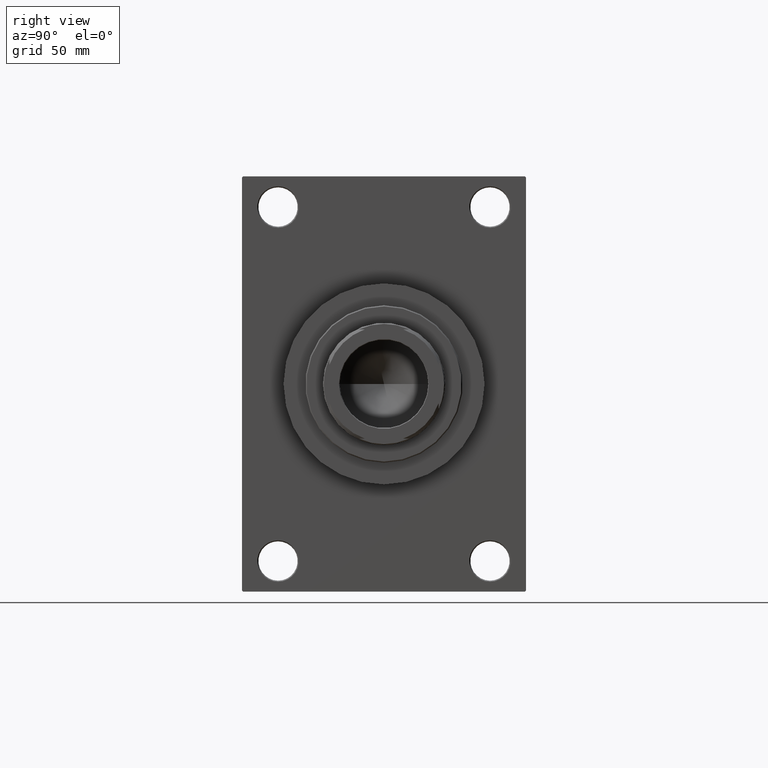
[diagram: clean part render]
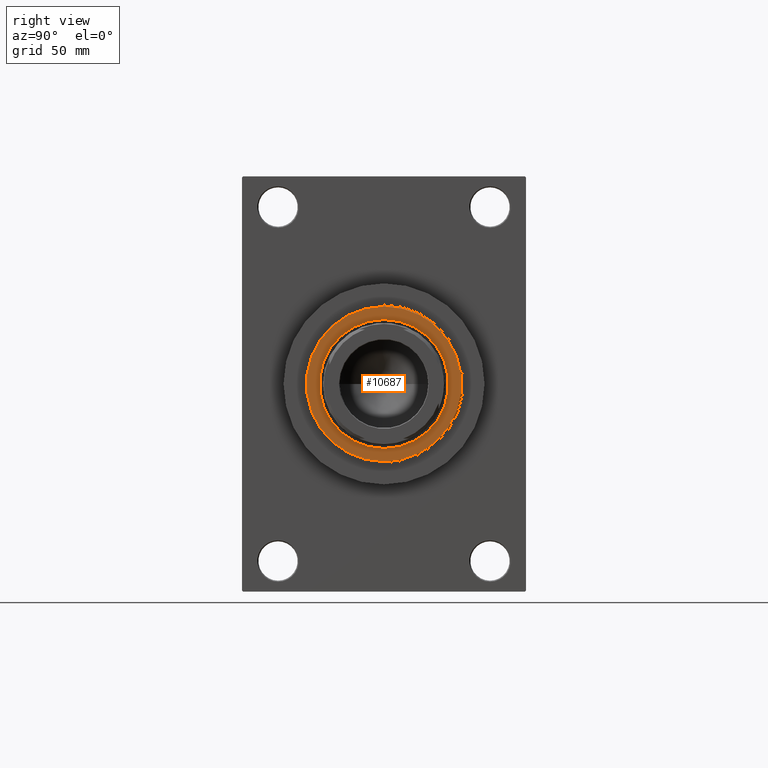
[diagram: same view with one face highlighted and labeled with its STEP entity id]
A machine part, right view. The second image highlights one B-rep face of the part: STEP entity #10687.
In plain terms, the highlighted planar face has unit normal (1, -0, -0).
Its self-contained STEP definition (entity closure, byte-faithful):
#640 = CARTESIAN_POINT ( 'NONE',  ( 29.50000000000000355, 0.000000000000000000, 53.26000000000000512 ) ) ;
#1075 = CIRCLE ( 'NONE', #36527, 29.50000000000000355 ) ;
#1826 = DIRECTION ( 'NONE',  ( 1.000000000000000000, 0.000000000000000000, 0.000000000000000000 ) ) ;
#1954 = ORIENTED_EDGE ( 'NONE', *, *, #36637, .F. ) ;
#2438 = ORIENTED_EDGE ( 'NONE', *, *, #43179, .T. ) ;
#2820 = CARTESIAN_POINT ( 'NONE',  ( 35.50000000000001421, 4.378112306951788646E-15, 53.26000000000000512 ) ) ;
#4005 = AXIS2_PLACEMENT_3D ( 'NONE', #46551, #39759, #6448 ) ;
#5432 = DIRECTION ( 'NONE',  ( 0.000000000000000000, 0.000000000000000000, 1.000000000000000000 ) ) ;
#5845 = DIRECTION ( 'NONE',  ( 1.000000000000000000, 0.000000000000000000, 0.000000000000000000 ) ) ;
#6448 = DIRECTION ( 'NONE',  ( 1.000000000000000000, 0.000000000000000000, 0.000000000000000000 ) ) ;
#7397 = FACE_BOUND ( 'NONE', #12049, .T. ) ;
#10288 = AXIS2_PLACEMENT_3D ( 'NONE', #22344, #10305, #25743 ) ;
#10305 = DIRECTION ( 'NONE',  ( 0.000000000000000000, 0.000000000000000000, 1.000000000000000000 ) ) ;
#10687 = ADVANCED_FACE ( 'NONE', ( #7397, #10757 ), #32993, .T. ) ;
#10757 = FACE_OUTER_BOUND ( 'NONE', #31686, .T. ) ;
#10799 = CARTESIAN_POINT ( 'NONE',  ( 0.000000000000000000, 0.000000000000000000, 53.26000000000000512 ) ) ;
#12049 = EDGE_LOOP ( 'NONE', ( #1954, #37176 ) ) ;
#15669 = CARTESIAN_POINT ( 'NONE',  ( -29.50000000000000355, 3.612708057484692393E-15, 53.26000000000000512 ) ) ;
#16475 = VERTEX_POINT ( 'NONE', #2820 ) ;
#17820 = DIRECTION ( 'NONE',  ( 0.000000000000000000, 0.000000000000000000, 1.000000000000000000 ) ) ;
#22344 = CARTESIAN_POINT ( 'NONE',  ( 0.000000000000000000, 0.000000000000000000, 53.26000000000000512 ) ) ;
#23531 = VERTEX_POINT ( 'NONE', #15669 ) ;
#24579 = EDGE_CURVE ( 'NONE', #44839, #16475, #36217, .T. ) ;
#25743 = DIRECTION ( 'NONE',  ( 1.000000000000000000, 0.000000000000000000, -0.000000000000000000 ) ) ;
#27411 = CARTESIAN_POINT ( 'NONE',  ( 0.000000000000000000, 0.000000000000000000, 53.26000000000000512 ) ) ;
#31686 = EDGE_LOOP ( 'NONE', ( #33138, #2438 ) ) ;
#32564 = DIRECTION ( 'NONE',  ( 1.000000000000000000, 0.000000000000000000, 0.000000000000000000 ) ) ;
#32993 = PLANE ( 'NONE',  #10288 ) ;
#33138 = ORIENTED_EDGE ( 'NONE', *, *, #24579, .T. ) ;
#33342 = CIRCLE ( 'NONE', #4005, 35.50000000000001421 ) ;
#34969 = CARTESIAN_POINT ( 'NONE',  ( -35.50000000000001421, 0.000000000000000000, 53.26000000000000512 ) ) ;
#35125 = CIRCLE ( 'NONE', #46682, 29.50000000000000355 ) ;
#36217 = CIRCLE ( 'NONE', #39317, 35.50000000000001421 ) ;
#36527 = AXIS2_PLACEMENT_3D ( 'NONE', #42537, #38927, #5845 ) ;
#36637 = EDGE_CURVE ( 'NONE', #36739, #23531, #1075, .T. ) ;
#36739 = VERTEX_POINT ( 'NONE', #640 ) ;
#37176 = ORIENTED_EDGE ( 'NONE', *, *, #40117, .F. ) ;
#38927 = DIRECTION ( 'NONE',  ( 0.000000000000000000, 0.000000000000000000, 1.000000000000000000 ) ) ;
#39317 = AXIS2_PLACEMENT_3D ( 'NONE', #10799, #17820, #32564 ) ;
#39759 = DIRECTION ( 'NONE',  ( 0.000000000000000000, 0.000000000000000000, 1.000000000000000000 ) ) ;
#40117 = EDGE_CURVE ( 'NONE', #23531, #36739, #35125, .T. ) ;
#42537 = CARTESIAN_POINT ( 'NONE',  ( 0.000000000000000000, 0.000000000000000000, 53.26000000000000512 ) ) ;
#43179 = EDGE_CURVE ( 'NONE', #16475, #44839, #33342, .T. ) ;
#44839 = VERTEX_POINT ( 'NONE', #34969 ) ;
#46551 = CARTESIAN_POINT ( 'NONE',  ( 0.000000000000000000, 0.000000000000000000, 53.26000000000000512 ) ) ;
#46682 = AXIS2_PLACEMENT_3D ( 'NONE', #27411, #5432, #1826 ) ;